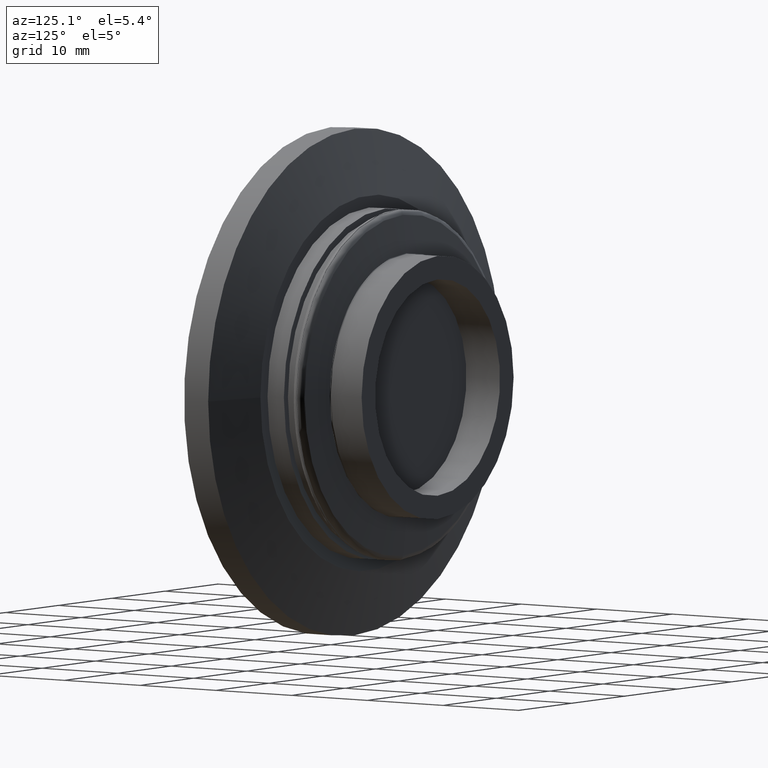
[diagram: clean part render]
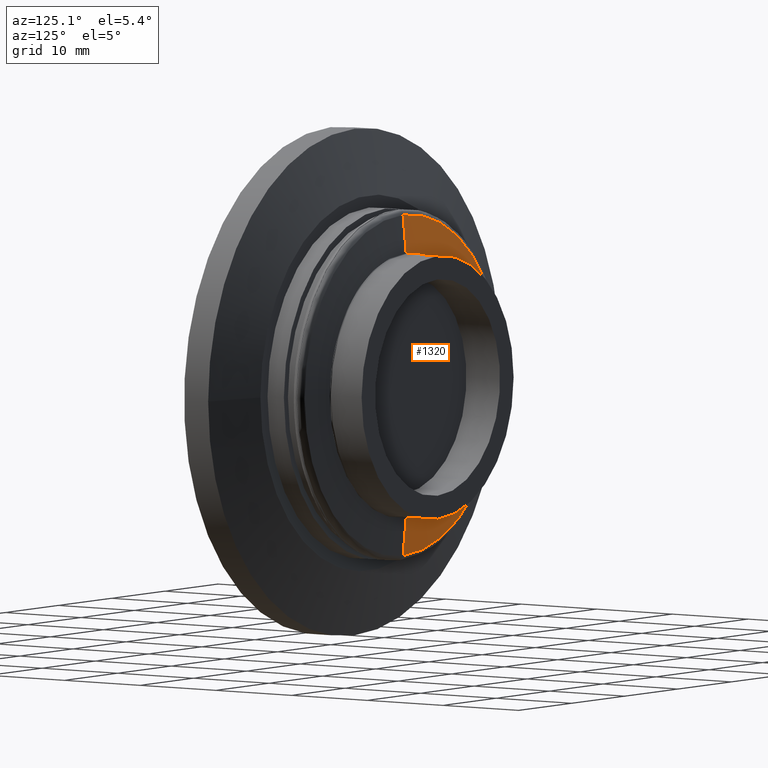
[diagram: same view with one face highlighted and labeled with its STEP entity id]
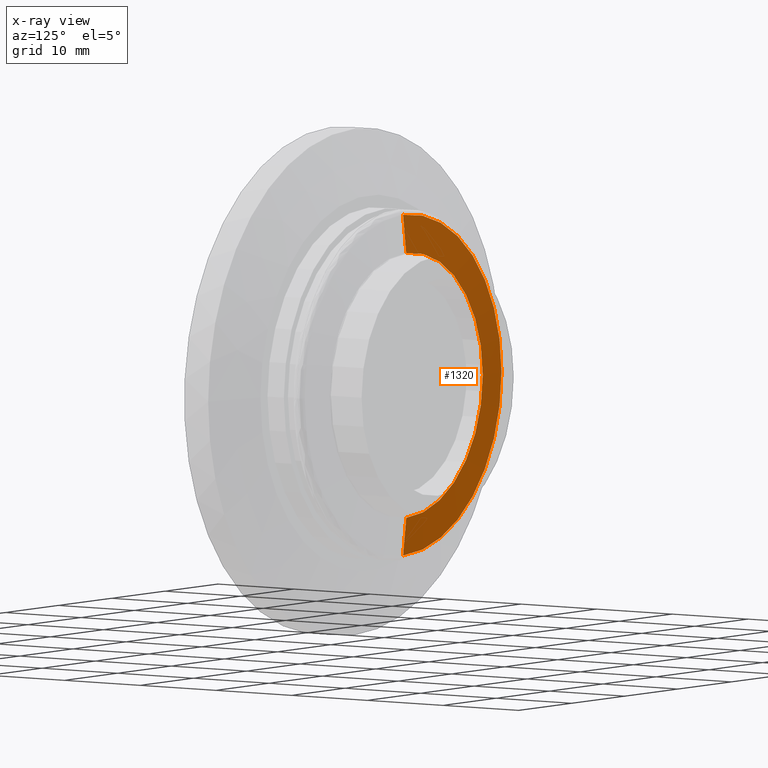
[diagram: x-ray of the same camera — body ghosted, the highlighted face saturated]
A machine part, auxiliary view. The second image highlights one B-rep face of the part: STEP entity #1320.
The next image is the same camera in x-ray: the body ghosted, the highlighted face saturated — about 1% of this face is hidden behind the body in this view.
In plain terms, the highlighted conical surface has half-angle 84.146 deg.
Its self-contained STEP definition (entity closure, byte-faithful):
#161 = CARTESIAN_POINT ( 'NONE',  ( 7.924020191110858700E-017, 0.3944104975262508500, 0.5660920577939815300 ) ) ;
#163 = CARTESIAN_POINT ( 'NONE',  ( 0.0000000000000000000, 0.3944104975262508500, -0.5660920577939815300 ) ) ;
#164 = CARTESIAN_POINT ( 'NONE',  ( 0.0000000000000000000, 0.3778118173261989500, -0.7279986460118620400 ) ) ;
#187 = CARTESIAN_POINT ( 'NONE',  ( 8.915412116220339400E-017, 0.3778118173261989500, 0.7279986460118620400 ) ) ;
#204 = DIRECTION ( 'NONE',  ( 1.218261343924824000E-016, -0.1019855515045702300, 0.9947858801190880800 ) ) ;
#208 = CARTESIAN_POINT ( 'NONE',  ( 8.915412116220339400E-017, 0.3778118173261989500, 0.7279986460118620400 ) ) ;
#241 = DIRECTION ( 'NONE',  ( 0.0000000000000000000, 0.0000000000000000000, -1.000000000000000000 ) ) ;
#303 = DIRECTION ( 'NONE',  ( -0.0000000000000000000, -1.000000000000000000, -0.0000000000000000000 ) ) ;
#304 = CARTESIAN_POINT ( 'NONE',  ( 0.0000000000000000000, 0.3944104975262508500, 0.0000000000000000000 ) ) ;
#357 = AXIS2_PLACEMENT_3D ( 'NONE', #304, #303, #241 ) ;
#386 = AXIS2_PLACEMENT_3D ( 'NONE', #1226, #1225, #1224 ) ;
#398 = EDGE_CURVE ( 'NONE', #1029, #1030, #824, .T. ) ;
#421 = EDGE_CURVE ( 'NONE', #1032, #1030, #790, .T. ) ;
#465 = AXIS2_PLACEMENT_3D ( 'NONE', #624, #622, #615 ) ;
#536 = EDGE_CURVE ( 'NONE', #1033, #1029, #748, .T. ) ;
#538 = EDGE_CURVE ( 'NONE', #1033, #1032, #745, .T. ) ;
#615 = DIRECTION ( 'NONE',  ( 0.0000000000000000000, 0.0000000000000000000, -1.000000000000000000 ) ) ;
#622 = DIRECTION ( 'NONE',  ( 0.0000000000000000000, -1.000000000000000000, 0.0000000000000000000 ) ) ;
#624 = CARTESIAN_POINT ( 'NONE',  ( 0.0000000000000000000, 0.3778118173261989500, 0.0000000000000000000 ) ) ;
#673 = CONICAL_SURFACE ( 'NONE', #465, 0.7279986460118620400, 1.468633149806945400 ) ;
#675 = FACE_OUTER_BOUND ( 'NONE', #1003, .T. ) ;
#745 = CIRCLE ( 'NONE', #357, 0.5660920577939815300 ) ;
#746 = VECTOR ( 'NONE', #204, 39.37007874015748100 ) ;
#748 = LINE ( 'NONE', #208, #746 ) ;
#786 = VECTOR ( 'NONE', #1141, 39.37007874015748100 ) ;
#790 = LINE ( 'NONE', #1150, #786 ) ;
#824 = CIRCLE ( 'NONE', #386, 0.7279986460118620400 ) ;
#905 = ORIENTED_EDGE ( 'NONE', *, *, #536, .F. ) ;
#906 = ORIENTED_EDGE ( 'NONE', *, *, #538, .T. ) ;
#907 = ORIENTED_EDGE ( 'NONE', *, *, #421, .T. ) ;
#908 = ORIENTED_EDGE ( 'NONE', *, *, #398, .F. ) ;
#1003 = EDGE_LOOP ( 'NONE', ( #905, #906, #907, #908 ) ) ;
#1029 = VERTEX_POINT ( 'NONE', #187 ) ;
#1030 = VERTEX_POINT ( 'NONE', #164 ) ;
#1032 = VERTEX_POINT ( 'NONE', #163 ) ;
#1033 = VERTEX_POINT ( 'NONE', #161 ) ;
#1141 = DIRECTION ( 'NONE',  ( 0.0000000000000000000, -0.1019855515045702300, -0.9947858801190880800 ) ) ;
#1150 = CARTESIAN_POINT ( 'NONE',  ( 0.0000000000000000000, 0.3778118173261989500, -0.7279986460118620400 ) ) ;
#1224 = DIRECTION ( 'NONE',  ( 0.0000000000000000000, 0.0000000000000000000, -1.000000000000000000 ) ) ;
#1225 = DIRECTION ( 'NONE',  ( -0.0000000000000000000, -1.000000000000000000, -0.0000000000000000000 ) ) ;
#1226 = CARTESIAN_POINT ( 'NONE',  ( 0.0000000000000000000, 0.3778118173261989500, 0.0000000000000000000 ) ) ;
#1320 = ADVANCED_FACE ( 'NONE', ( #675 ), #673, .T. ) ;